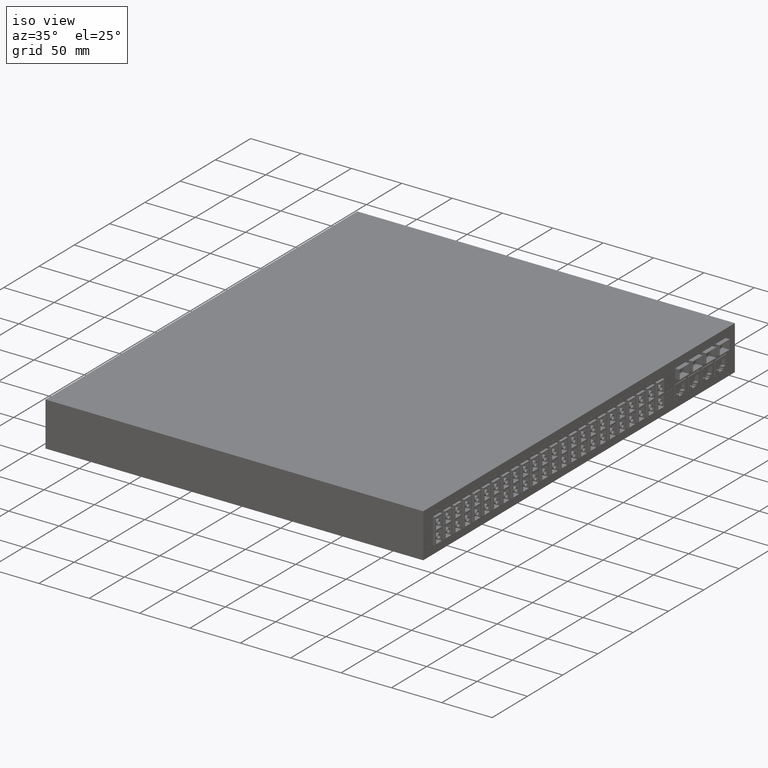
[diagram: clean part render]
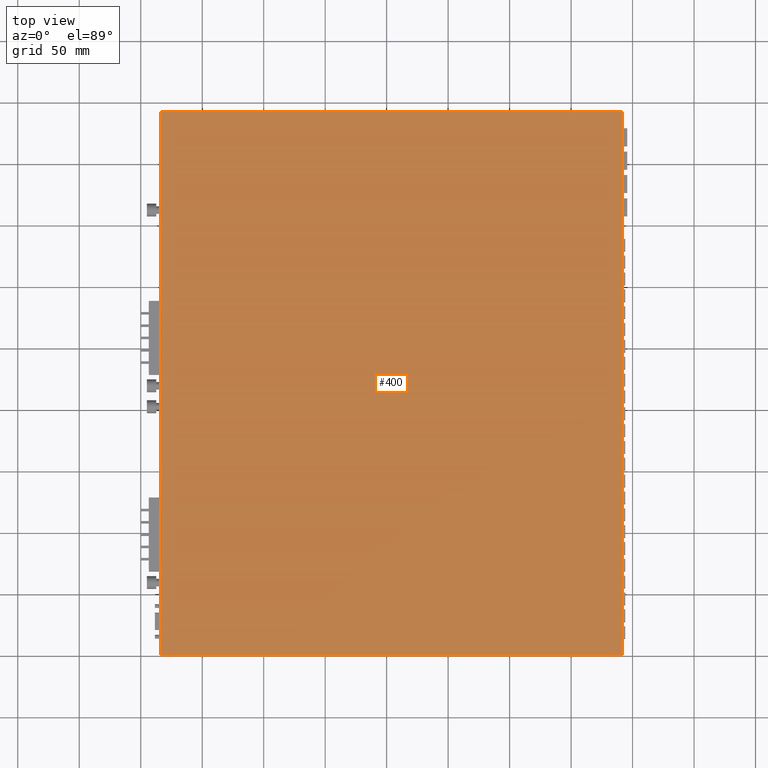
[diagram: tour spotlight — one face highlighted and labeled with its STEP entity id]
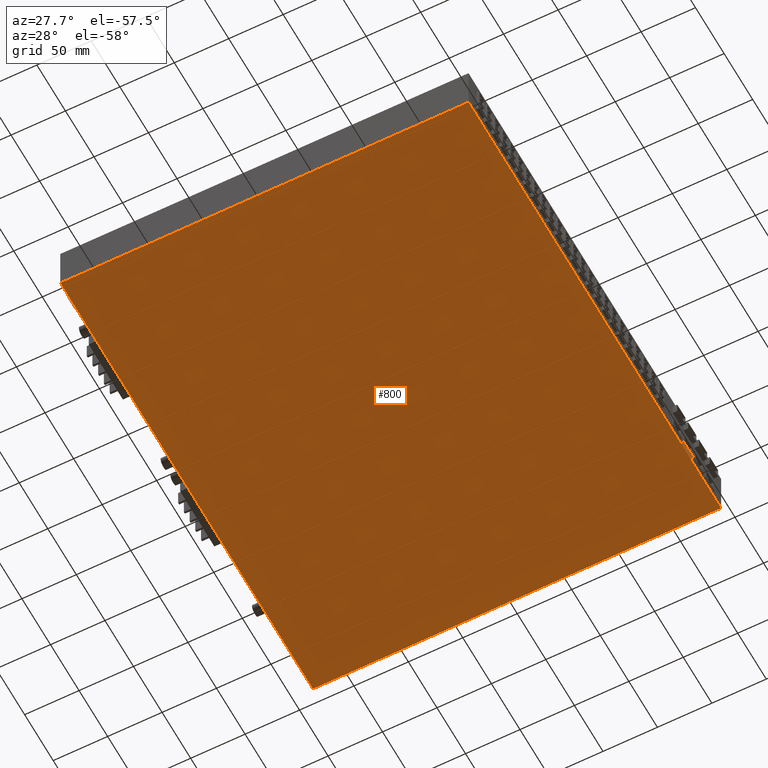
[diagram: tour spotlight — one face highlighted and labeled with its STEP entity id]
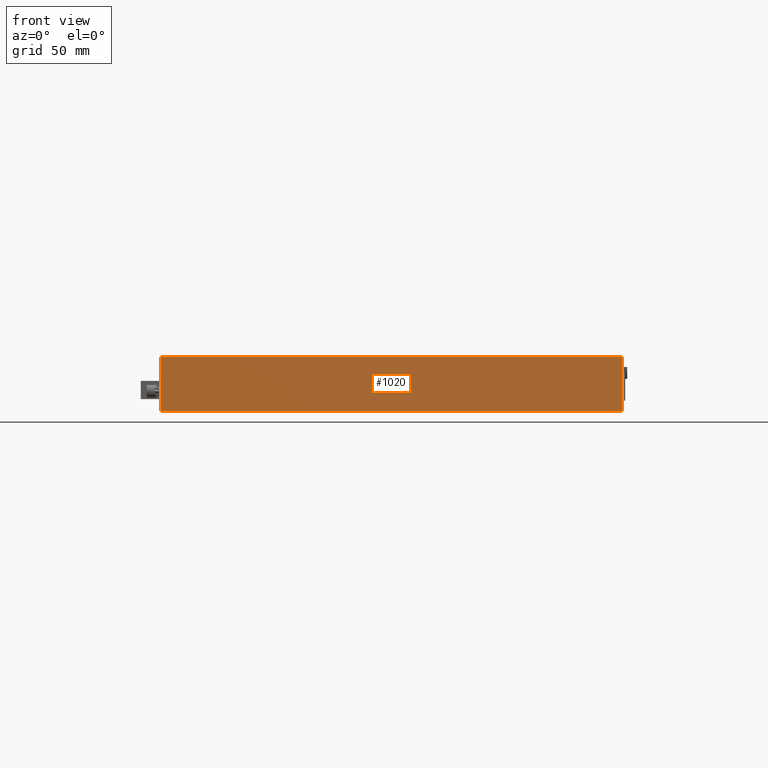
[diagram: tour spotlight — one face highlighted and labeled with its STEP entity id]
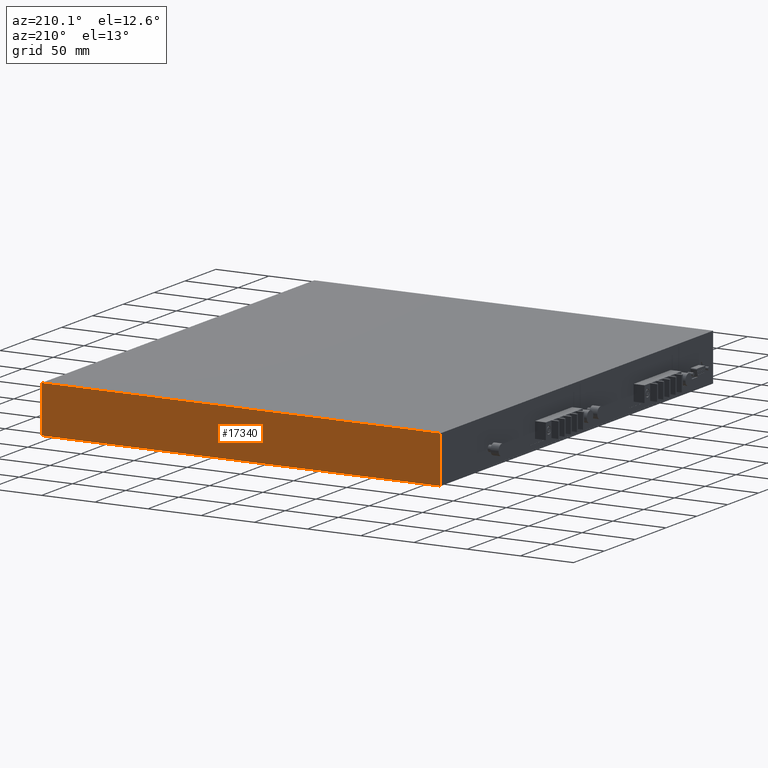
[diagram: tour spotlight — one face highlighted and labeled with its STEP entity id]
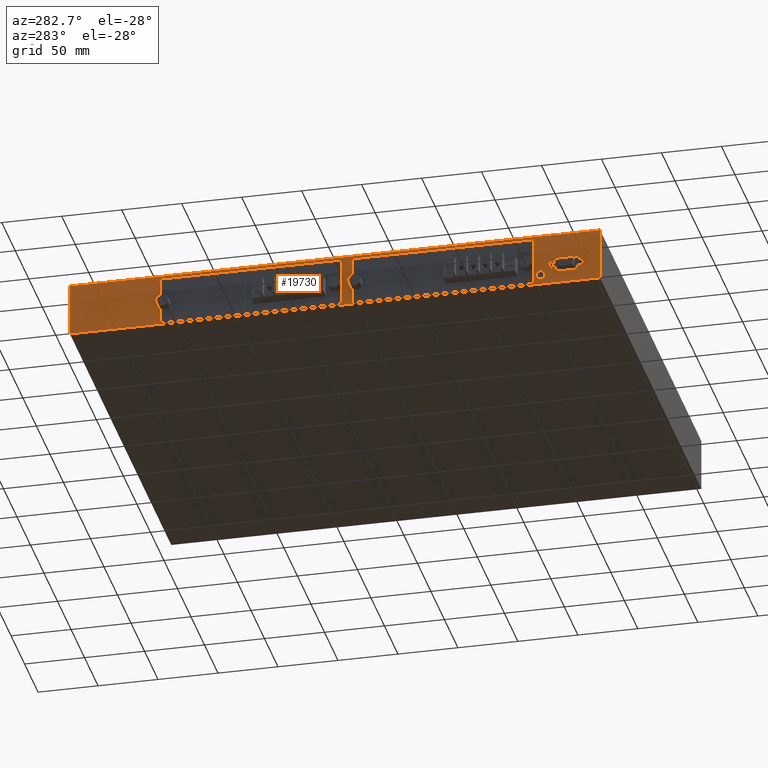
[diagram: tour spotlight — one face highlighted and labeled with its STEP entity id]
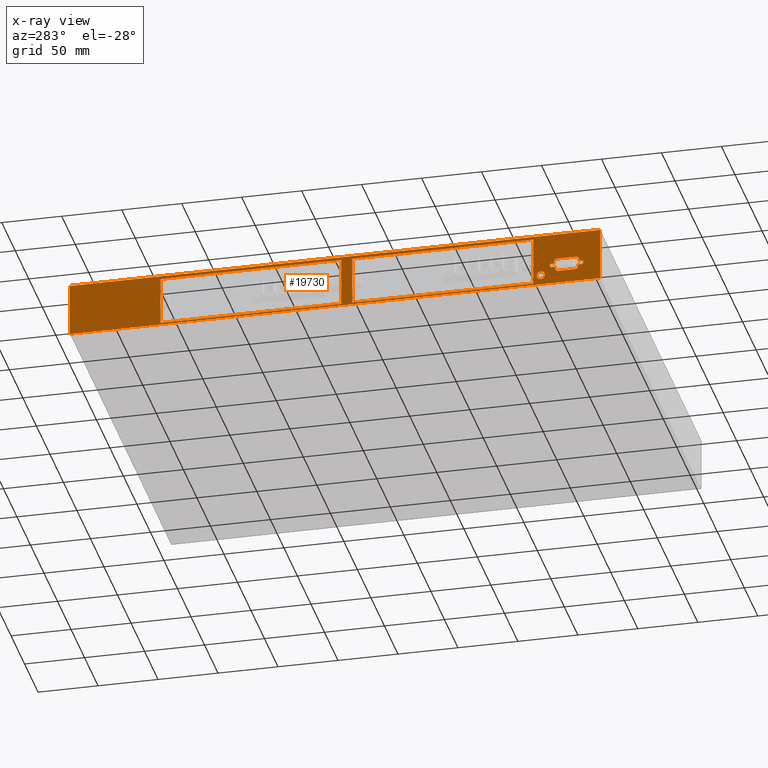
[diagram: x-ray of the same camera — body ghosted, this tour face saturated]
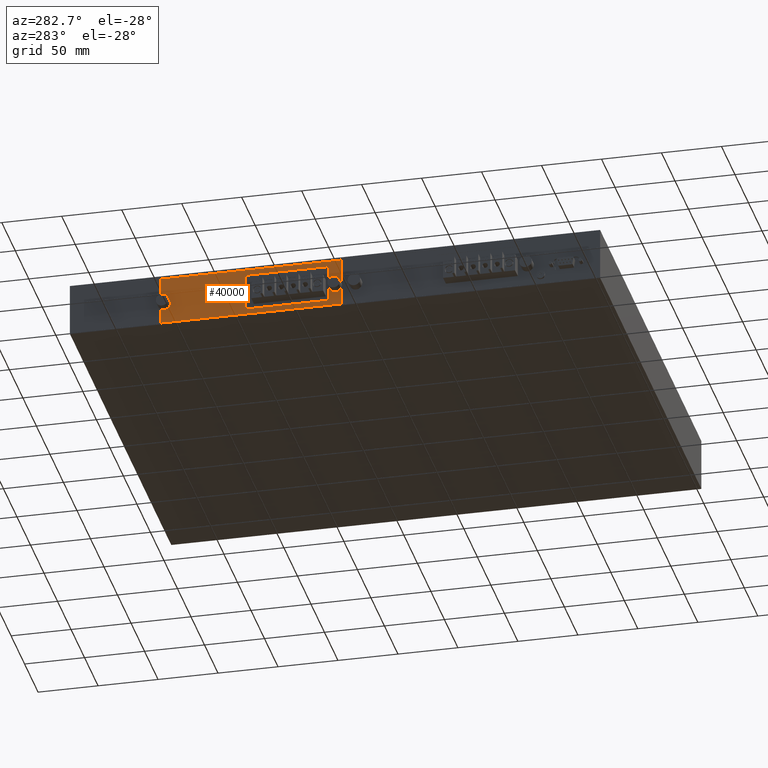
[diagram: tour spotlight — one face highlighted and labeled with its STEP entity id]
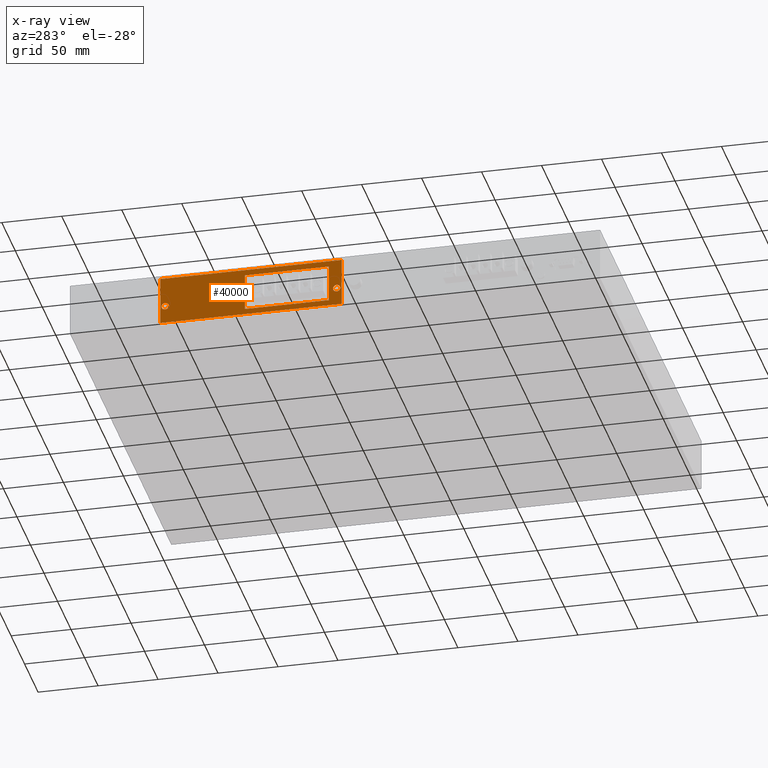
[diagram: x-ray of the same camera — body ghosted, this tour face saturated]
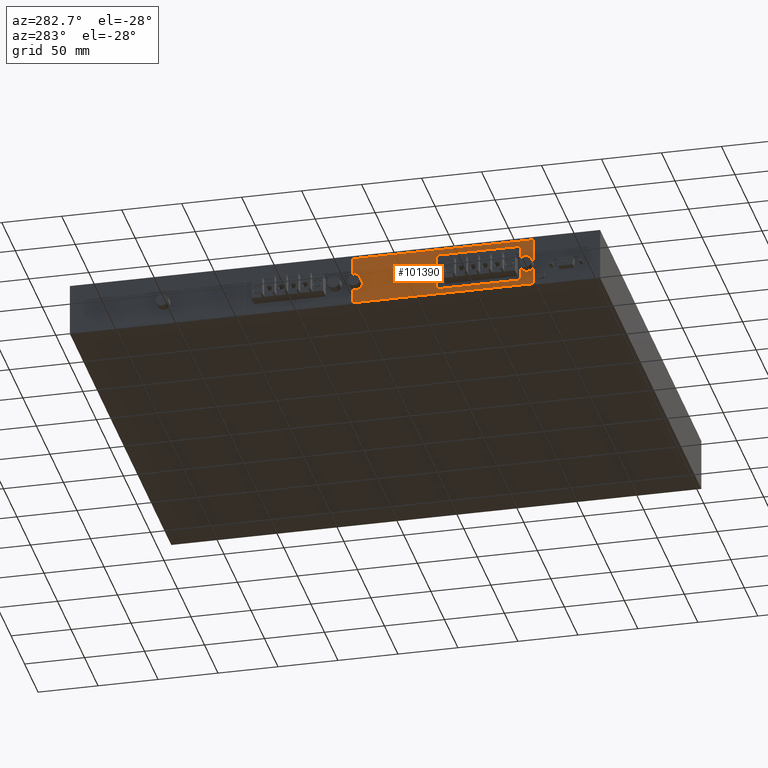
[diagram: tour spotlight — one face highlighted and labeled with its STEP entity id]
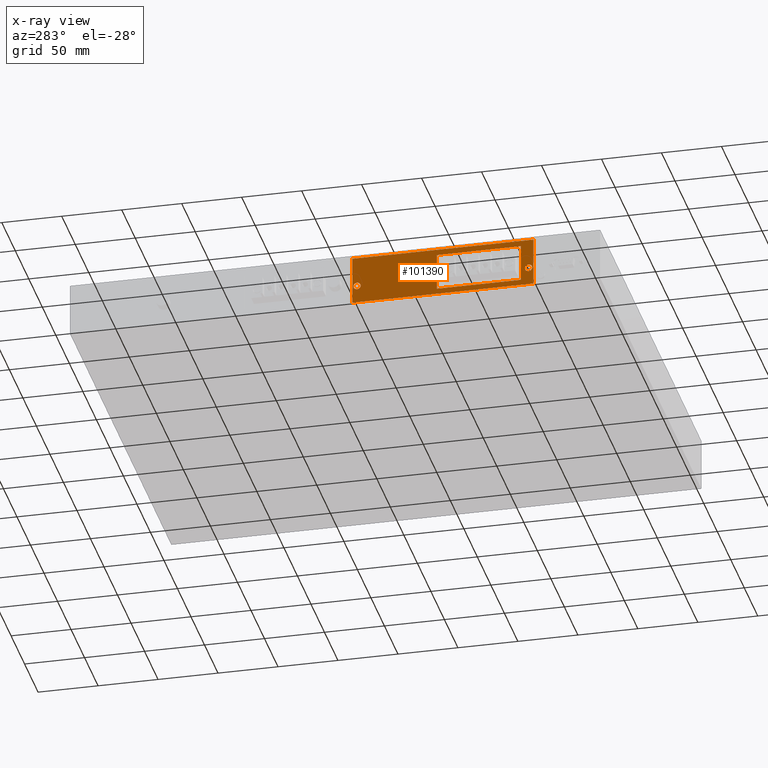
[diagram: x-ray of the same camera — body ghosted, this tour face saturated]
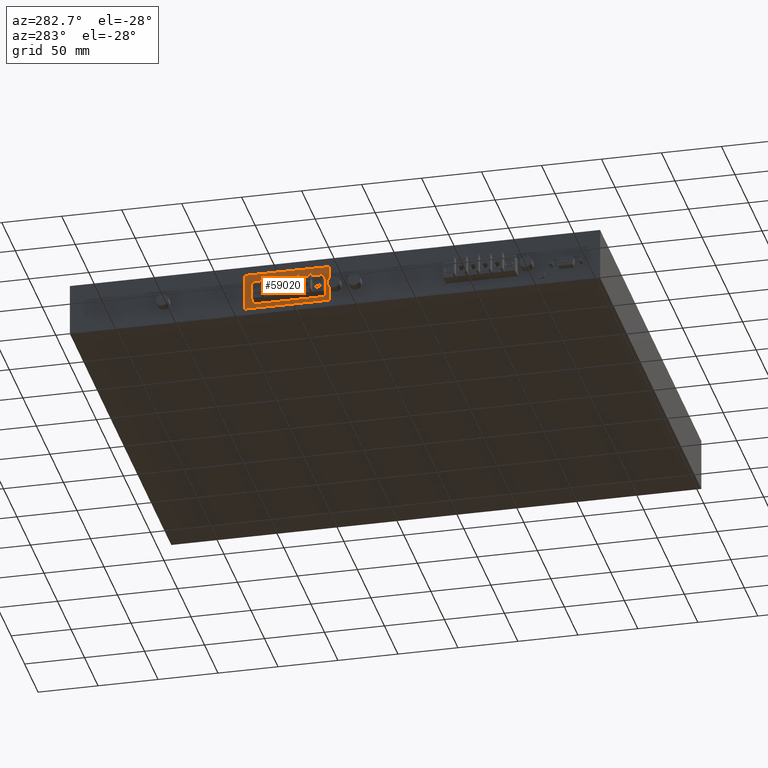
[diagram: tour spotlight — one face highlighted and labeled with its STEP entity id]
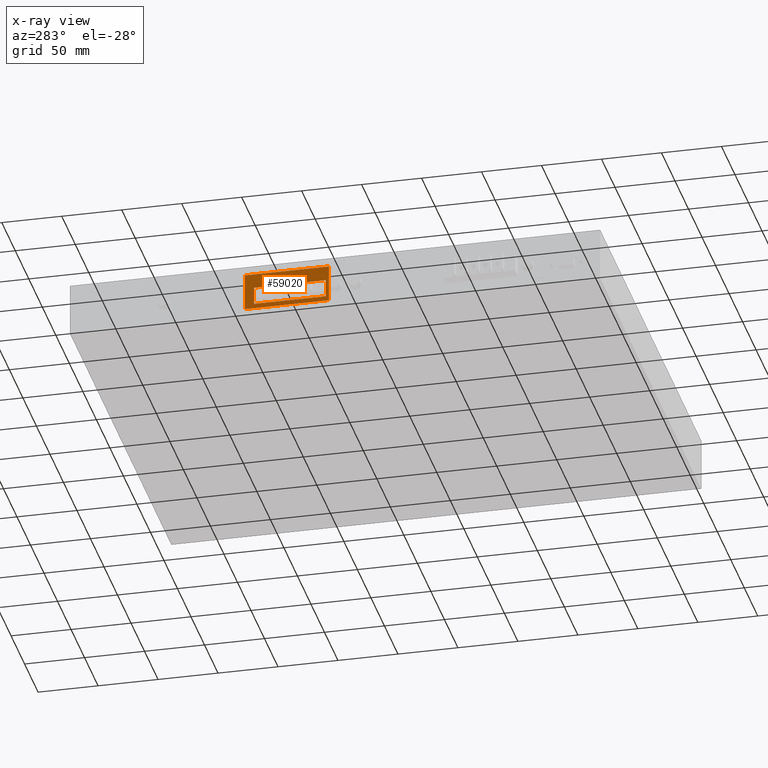
[diagram: x-ray of the same camera — body ghosted, this tour face saturated]
A machine part: a face-by-face anatomy tour. The part has 1141 B-rep faces; the first image is the clean iso view, then the 8 largest visible faces are spotlighted one at a time (largest first), each with its STEP entity span.

Face 1 — top view, entity #400. In plain terms, the highlighted planar face has unit normal (0, 0, 1).
Definition (entity closure, byte-faithful):
#10=CARTESIAN_POINT('',(-231.744053107435,4.40363222366137,
384.37506614998));
#20=DIRECTION('',(-0.,1.,0.));
#30=DIRECTION('',(1.,0.,0.));
#40=AXIS2_PLACEMENT_3D('',#10,#20,#30);
#50=PLANE('',#40);
#60=CARTESIAN_POINT('',(0.,4.40363222366137,-1.97246663447004E-11));
#70=DIRECTION('',(-1.,0.,0.));
#80=VECTOR('',#70,1.);
#90=LINE('',#60,#80);
#100=CARTESIAN_POINT('',(221.306013042565,4.40363222366137,
-1.97246663447004E-11));
#110=VERTEX_POINT('',#100);
#120=CARTESIAN_POINT('',(-220.693986957435,4.40363222366137,-1.9725E-11)
);
#130=VERTEX_POINT('',#120);
#140=EDGE_CURVE('',#110,#130,#90,.T.);
#150=ORIENTED_EDGE('',*,*,#140,.T.);
#160=CARTESIAN_POINT('',(221.306013042565,4.40363222366137,0.));
#170=DIRECTION('',(0.,0.,1.));
#180=VECTOR('',#170,1.);
#190=LINE('',#160,#180);
#200=CARTESIAN_POINT('',(221.306013042565,4.40363222366137,
374.99999999998));
#210=VERTEX_POINT('',#200);
#220=EDGE_CURVE('',#110,#210,#190,.T.);
#230=ORIENTED_EDGE('',*,*,#220,.F.);
#240=CARTESIAN_POINT('',(0.,4.40363222366137,374.99999999998));
#250=DIRECTION('',(-1.,0.,0.));
#260=VECTOR('',#250,1.);
#270=LINE('',#240,#260);
#280=CARTESIAN_POINT('',(-220.693986957435,4.40363222366137,
374.99999999998));
#290=VERTEX_POINT('',#280);
#300=EDGE_CURVE('',#210,#290,#270,.T.);
#310=ORIENTED_EDGE('',*,*,#300,.F.);
#320=CARTESIAN_POINT('',(-220.693986957435,4.40363222366137,0.));
#330=DIRECTION('',(0.,0.,-1.));
#340=VECTOR('',#330,1.);
#350=LINE('',#320,#340);
#360=EDGE_CURVE('',#290,#130,#350,.T.);
#370=ORIENTED_EDGE('',*,*,#360,.F.);
#380=EDGE_LOOP('',(#370,#310,#230,#150));
#390=FACE_OUTER_BOUND('',#380,.T.);
#400=ADVANCED_FACE('',(#390),#50,.T.);

Face 2 — auxiliary view, entity #800. In plain terms, the highlighted planar face has unit normal (-0, -0, -1).
Definition (entity closure, byte-faithful):
#410=CARTESIAN_POINT('',(232.356079192565,-39.5963677763395,
384.37506614998));
#420=DIRECTION('',(-0.,-1.,-0.));
#430=DIRECTION('',(-1.,0.,0.));
#440=AXIS2_PLACEMENT_3D('',#410,#420,#430);
#450=PLANE('',#440);
#460=CARTESIAN_POINT('',(-220.693986957435,-39.5963677763395,0.));
#470=DIRECTION('',(0.,0.,1.));
#480=VECTOR('',#470,1.);
#490=LINE('',#460,#480);
#500=CARTESIAN_POINT('',(-220.693986957435,-39.5963677763395,-1.9725E-11
));
#510=VERTEX_POINT('',#500);
#520=CARTESIAN_POINT('',(-220.693986957435,-39.5963677763395,
374.99999999998));
#530=VERTEX_POINT('',#520);
#540=EDGE_CURVE('',#510,#530,#490,.T.);
#550=ORIENTED_EDGE('',*,*,#540,.F.);
#560=CARTESIAN_POINT('',(0.,-39.5963677763395,374.99999999998));
#570=DIRECTION('',(1.,0.,0.));
#580=VECTOR('',#570,1.);
#590=LINE('',#560,#580);
#600=CARTESIAN_POINT('',(221.306013042565,-39.5963677763395,
374.99999999998));
#610=VERTEX_POINT('',#600);
#620=EDGE_CURVE('',#530,#610,#590,.T.);
#630=ORIENTED_EDGE('',*,*,#620,.F.);
#640=CARTESIAN_POINT('',(221.306013042565,-39.5963677763395,0.));
#650=DIRECTION('',(0.,0.,-1.));
#660=VECTOR('',#650,1.);
#670=LINE('',#640,#660);
#680=CARTESIAN_POINT('',(221.306013042565,-39.5963677763395,-1.9725E-11)
);
#690=VERTEX_POINT('',#680);
#700=EDGE_CURVE('',#610,#690,#670,.T.);
#710=ORIENTED_EDGE('',*,*,#700,.F.);
#720=CARTESIAN_POINT('',(0.,-39.5963677763395,-1.97246663447004E-11));
#730=DIRECTION('',(1.,0.,0.));
#740=VECTOR('',#730,1.);
#750=LINE('',#720,#740);
#760=EDGE_CURVE('',#510,#690,#750,.T.);
#770=ORIENTED_EDGE('',*,*,#760,.T.);
#780=EDGE_LOOP('',(#770,#710,#630,#550));
#790=FACE_OUTER_BOUND('',#780,.T.);
#800=ADVANCED_FACE('',(#790),#450,.T.);

Face 3 — front view, entity #1020. In plain terms, the highlighted planar face has unit normal (0, -1, 0).
Definition (entity closure, byte-faithful):
#120=CARTESIAN_POINT('',(-220.693986957435,4.40363222366137,-1.9725E-11)
);
#130=VERTEX_POINT('',#120);
#280=CARTESIAN_POINT('',(-220.693986957435,4.40363222366137,
374.99999999998));
#290=VERTEX_POINT('',#280);
#320=CARTESIAN_POINT('',(-220.693986957435,4.40363222366137,0.));
#330=DIRECTION('',(0.,0.,-1.));
#340=VECTOR('',#330,1.);
#350=LINE('',#320,#340);
#360=EDGE_CURVE('',#290,#130,#350,.T.);
#460=CARTESIAN_POINT('',(-220.693986957435,-39.5963677763395,0.));
#470=DIRECTION('',(0.,0.,1.));
#480=VECTOR('',#470,1.);
#490=LINE('',#460,#480);
#500=CARTESIAN_POINT('',(-220.693986957435,-39.5963677763395,-1.9725E-11
));
#510=VERTEX_POINT('',#500);
#520=CARTESIAN_POINT('',(-220.693986957435,-39.5963677763395,
374.99999999998));
#530=VERTEX_POINT('',#520);
#540=EDGE_CURVE('',#510,#530,#490,.T.);
#810=CARTESIAN_POINT('',(-220.693986957435,-40.6964339263395,
384.37506614998));
#820=DIRECTION('',(-1.,0.,0.));
#830=DIRECTION('',(0.,1.,0.));
#840=AXIS2_PLACEMENT_3D('',#810,#820,#830);
#850=PLANE('',#840);
#860=CARTESIAN_POINT('',(-220.693986957435,0.,374.99999999998));
#870=DIRECTION('',(0.,-1.,0.));
#880=VECTOR('',#870,1.);
#890=LINE('',#860,#880);
#900=EDGE_CURVE('',#290,#530,#890,.T.);
#910=ORIENTED_EDGE('',*,*,#900,.F.);
#920=ORIENTED_EDGE('',*,*,#540,.T.);
#930=CARTESIAN_POINT('',(-220.693986957435,0.,-1.97246663447004E-11));
#940=DIRECTION('',(0.,-1.,0.));
#950=VECTOR('',#940,1.);
#960=LINE('',#930,#950);
#970=EDGE_CURVE('',#130,#510,#960,.T.);
#980=ORIENTED_EDGE('',*,*,#970,.T.);
#990=ORIENTED_EDGE('',*,*,#360,.T.);
#1000=EDGE_LOOP('',(#990,#980,#920,#910));
#1010=FACE_OUTER_BOUND('',#1000,.T.);
#1020=ADVANCED_FACE('',(#1010),#850,.T.);

Face 4 — auxiliary view, entity #17340. In plain terms, the highlighted planar face has unit normal (0, 1, 0).
Definition (entity closure, byte-faithful):
#100=CARTESIAN_POINT('',(221.306013042565,4.40363222366137,
-1.97246663447004E-11));
#110=VERTEX_POINT('',#100);
#160=CARTESIAN_POINT('',(221.306013042565,4.40363222366137,0.));
#170=DIRECTION('',(0.,0.,1.));
#180=VECTOR('',#170,1.);
#190=LINE('',#160,#180);
#200=CARTESIAN_POINT('',(221.306013042565,4.40363222366137,
374.99999999998));
#210=VERTEX_POINT('',#200);
#220=EDGE_CURVE('',#110,#210,#190,.T.);
#600=CARTESIAN_POINT('',(221.306013042565,-39.5963677763395,
374.99999999998));
#610=VERTEX_POINT('',#600);
#640=CARTESIAN_POINT('',(221.306013042565,-39.5963677763395,0.));
#650=DIRECTION('',(0.,0.,-1.));
#660=VECTOR('',#650,1.);
#670=LINE('',#640,#660);
#680=CARTESIAN_POINT('',(221.306013042565,-39.5963677763395,-1.9725E-11)
);
#690=VERTEX_POINT('',#680);
#700=EDGE_CURVE('',#610,#690,#670,.T.);
#15560=CARTESIAN_POINT('',(221.306013042565,0.,374.99999999998));
#15570=DIRECTION('',(0.,1.,0.));
#15580=VECTOR('',#15570,1.);
#15590=LINE('',#15560,#15580);
#15600=EDGE_CURVE('',#610,#210,#15590,.T.);
#17180=CARTESIAN_POINT('',(221.306013042565,5.50369837366139,
384.37506614998));
#17190=DIRECTION('',(1.,0.,0.));
#17200=DIRECTION('',(0.,-1.,0.));
#17210=AXIS2_PLACEMENT_3D('',#17180,#17190,#17200);
#17220=PLANE('',#17210);
#17230=CARTESIAN_POINT('',(221.306013042565,0.,-1.97246663447004E-11));
#17240=DIRECTION('',(0.,1.,0.));
#17250=VECTOR('',#17240,1.);
#17260=LINE('',#17230,#17250);
#17270=EDGE_CURVE('',#690,#110,#17260,.T.);
#17280=ORIENTED_EDGE('',*,*,#17270,.T.);
#17290=ORIENTED_EDGE('',*,*,#700,.T.);
#17300=ORIENTED_EDGE('',*,*,#15600,.F.);
#17310=ORIENTED_EDGE('',*,*,#220,.T.);
#17320=EDGE_LOOP('',(#17310,#17300,#17290,#17280));
#17330=FACE_OUTER_BOUND('',#17320,.T.);
#17340=ADVANCED_FACE('',(#17330),#17220,.T.);

Face 5 — auxiliary view, entity #19730. An x-ray twin of the same camera follows (body ghosted, this face saturated) — the face is partly hidden behind the body. In plain terms, the highlighted planar face has unit normal (-1, 0, 0).
Definition (entity closure, byte-faithful):
#60=CARTESIAN_POINT('',(0.,4.40363222366137,-1.97246663447004E-11));
#70=DIRECTION('',(-1.,0.,0.));
#80=VECTOR('',#70,1.);
#90=LINE('',#60,#80);
#100=CARTESIAN_POINT('',(221.306013042565,4.40363222366137,
-1.97246663447004E-11));
#110=VERTEX_POINT('',#100);
#120=CARTESIAN_POINT('',(-220.693986957435,4.40363222366137,-1.9725E-11)
);
#130=VERTEX_POINT('',#120);
#140=EDGE_CURVE('',#110,#130,#90,.T.);
#500=CARTESIAN_POINT('',(-220.693986957435,-39.5963677763395,-1.9725E-11
));
#510=VERTEX_POINT('',#500);
#680=CARTESIAN_POINT('',(221.306013042565,-39.5963677763395,-1.9725E-11)
);
#690=VERTEX_POINT('',#680);
#720=CARTESIAN_POINT('',(0.,-39.5963677763395,-1.97246663447004E-11));
#730=DIRECTION('',(1.,0.,0.));
#740=VECTOR('',#730,1.);
#750=LINE('',#720,#740);
#760=EDGE_CURVE('',#510,#690,#750,.T.);
#930=CARTESIAN_POINT('',(-220.693986957435,0.,-1.97246663447004E-11));
#940=DIRECTION('',(0.,-1.,0.));
#950=VECTOR('',#940,1.);
#960=LINE('',#930,#950);
#970=EDGE_CURVE('',#130,#510,#960,.T.);
#17230=CARTESIAN_POINT('',(221.306013042565,0.,-1.97246663447004E-11));
#17240=DIRECTION('',(0.,1.,0.));
#17250=VECTOR('',#17240,1.);
#17260=LINE('',#17230,#17250);
#17270=EDGE_CURVE('',#690,#110,#17260,.T.);
#17350=CARTESIAN_POINT('',(232.356079192565,-40.6964339263395,
-1.97246663447004E-11));
#17360=DIRECTION('',(0.,0.,-1.));
#17370=DIRECTION('',(-1.,0.,0.));
#17380=AXIS2_PLACEMENT_3D('',#17350,#17360,#17370);
#17390=PLANE('',#17380);
#17400=CARTESIAN_POINT('',(0.,-38.4963677763395,-1.97246663447004E-11));
#17410=DIRECTION('',(-1.,0.,0.));
#17420=VECTOR('',#17410,1.);
#17430=LINE('',#17400,#17420);
#17440=CARTESIAN_POINT('',(145.906013042565,-38.4963677763395,
-1.9725E-11));
#17450=VERTEX_POINT('',#17440);
#17460=CARTESIAN_POINT('',(-5.09398695743528,-38.4963677763395,
-1.9725E-11));
#17470=VERTEX_POINT('',#17460);
#17480=EDGE_CURVE('',#17450,#17470,#17430,.T.);
#17490=ORIENTED_EDGE('',*,*,#17480,.F.);
#17500=CARTESIAN_POINT('',(-5.09398695743528,0.,-1.97246663447004E-11));
#17510=DIRECTION('',(0.,1.,0.));
#17520=VECTOR('',#17510,1.);
#17530=LINE('',#17500,#17520);
#17540=CARTESIAN_POINT('',(-5.09398695743528,2.0036322236605,-1.9725E-11
));
#17550=VERTEX_POINT('',#17540);
#17560=EDGE_CURVE('',#17470,#17550,#17530,.T.);
#17570=ORIENTED_EDGE('',*,*,#17560,.F.);
#17580=CARTESIAN_POINT('',(0.,2.0036322236605,-1.97246663447004E-11));
#17590=DIRECTION('',(1.,0.,0.));
#17600=VECTOR('',#17590,1.);
#17610=LINE('',#17580,#17600);
#17620=CARTESIAN_POINT('',(145.906013042565,2.0036322236605,-1.9725E-11)
);
#17630=VERTEX_POINT('',#17620);
#17640=EDGE_CURVE('',#17550,#17630,#17610,.T.);
#17650=ORIENTED_EDGE('',*,*,#17640,.F.);
#17660=CARTESIAN_POINT('',(145.906013042565,0.,-1.97246663447004E-11));
#17670=DIRECTION('',(0.,-1.,0.));
#17680=VECTOR('',#17670,1.);
#17690=LINE('',#17660,#17680);
#17700=EDGE_CURVE('',#17630,#17450,#17690,.T.);
#17710=ORIENTED_EDGE('',*,*,#17700,.F.);
#17720=EDGE_LOOP('',(#17710,#17650,#17570,#17490));
#17730=FACE_BOUND('',#17720,.T.);
#17740=CARTESIAN_POINT('',(0.,-29.2963677763395,-1.97246663447004E-11));
#17750=DIRECTION('',(-1.,0.,0.));
#17760=VECTOR('',#17750,1.);
#17770=LINE('',#17740,#17760);
#17780=CARTESIAN_POINT('',(-185.801863615455,-29.2963677763394,
-1.9725E-11));
#17790=VERTEX_POINT('',#17780);
#17800=CARTESIAN_POINT('',(-199.586110299416,-29.2963677763395,
-1.9725E-11));
#17810=VERTEX_POINT('',#17800);
#17820=EDGE_CURVE('',#17790,#17810,#17770,.T.);
#17830=ORIENTED_EDGE('',*,*,#17820,.F.);
#17840=CARTESIAN_POINT('',(-199.586110299416,-26.7963677763395,
-1.97246663447004E-11));
#17850=DIRECTION('',(0.,0.,1.));
#17860=DIRECTION('',(1.,0.,0.));
#17870=AXIS2_PLACEMENT_3D('',#17840,#17850,#17860);
#17880=CIRCLE('',#17870,2.50000000000003);
#17890=CARTESIAN_POINT('',(-202.048129681946,-27.2304882205068,
-1.9725E-11));
#17900=VERTEX_POINT('',#17890);
#17910=EDGE_CURVE('',#17900,#17810,#17880,.T.);
#17920=ORIENTED_EDGE('',*,*,#17910,.T.);
#17930=CARTESIAN_POINT('',(-206.849599453086,0.,-1.97246663447004E-11));
#17940=DIRECTION('',(-0.173648177666933,0.984807753012208,0.));
#17950=VECTOR('',#17940,1.);
#17960=LINE('',#17930,#17950);
#17970=CARTESIAN_POINT('',(-202.406799998264,-25.1963677763395,
-1.9725E-11));
#17980=VERTEX_POINT('',#17970);
#17990=EDGE_CURVE('',#17900,#17980,#17960,.T.);
#18000=ORIENTED_EDGE('',*,*,#17990,.F.);
#18010=CARTESIAN_POINT('',(0.,-25.1963677763395,-1.97246663447004E-11));
#18020=DIRECTION('',(-1.,0.,0.));
#18030=VECTOR('',#18020,1.);
#18040=LINE('',#18010,#18030);
#18050=CARTESIAN_POINT('',(-205.193986957435,-25.1963677763395,
-1.9725E-11));
#18060=VERTEX_POINT('',#18050);
#18070=EDGE_CURVE('',#17980,#18060,#18040,.T.);
#18080=ORIENTED_EDGE('',*,*,#18070,.F.);
#18090=CARTESIAN_POINT('',(-205.193986957435,-23.5963677763395,
-1.97246663447004E-11));
#18100=DIRECTION('',(0.,0.,1.));
#18110=DIRECTION('',(1.,0.,0.));
#18120=AXIS2_PLACEMENT_3D('',#18090,#18100,#18110);
#18130=CIRCLE('',#18120,1.60000000000001);
#18140=CARTESIAN_POINT('',(-206.793986957435,-23.5963677763395,
-1.97246663447004E-11));
#18150=VERTEX_POINT('',#18140);
#18160=EDGE_CURVE('',#18150,#18060,#18130,.T.);
#18170=ORIENTED_EDGE('',*,*,#18160,.T.);
#18180=CARTESIAN_POINT('',(-205.193986957435,-21.9963677763395,
-1.9725E-11));
#18190=VERTEX_POINT('',#18180);
#18200=EDGE_CURVE('',#18190,#18150,#18130,.T.);
#18210=ORIENTED_EDGE('',*,*,#18200,.T.);
#18220=CARTESIAN_POINT('',(0.,-21.9963677763395,-1.97246663447004E-11));
#18230=DIRECTION('',(1.,0.,0.));
#18240=VECTOR('',#18230,1.);
#18250=LINE('',#18220,#18240);
#18260=CARTESIAN_POINT('',(-202.971046336531,-21.9963677763395,
-1.9725E-11));
#18270=VERTEX_POINT('',#18260);
#18280=EDGE_CURVE('',#18190,#18270,#18250,.T.);
#18290=ORIENTED_EDGE('',*,*,#18280,.F.);
#18300=CARTESIAN_POINT('',(-206.849599453085,0.,-1.97246663447004E-11));
#18310=DIRECTION('',(-0.173648177666922,0.98480775301221,0.));
#18320=VECTOR('',#18310,1.);
#18330=LINE('',#18300,#18320);
#18340=CARTESIAN_POINT('',(-203.17662235848,-20.8304882205068,
-1.9725E-11));
#18350=VERTEX_POINT('',#18340);
#18360=EDGE_CURVE('',#18270,#18350,#18330,.T.);
#18370=ORIENTED_EDGE('',*,*,#18360,.F.);
#18380=CARTESIAN_POINT('',(-200.71460297595,-20.3963677763395,
-1.97246663447004E-11));
#18390=DIRECTION('',(0.,0.,1.));
#18400=DIRECTION('',(1.,0.,0.));
#18410=AXIS2_PLACEMENT_3D('',#18380,#18390,#18400);
#18420=CIRCLE('',#18410,2.50000000000001);
#18430=CARTESIAN_POINT('',(-200.71460297595,-17.8963677763395,
-1.9725E-11));
#18440=VERTEX_POINT('',#18430);
#18450=EDGE_CURVE('',#18440,#18350,#18420,.T.);
#18460=ORIENTED_EDGE('',*,*,#18450,.T.);
#18470=CARTESIAN_POINT('',(0.,-17.8963677763394,-1.97246663447004E-11));
#18480=DIRECTION('',(1.,0.,0.));
#18490=VECTOR('',#18480,1.);
#18500=LINE('',#18470,#18490);
#18510=CARTESIAN_POINT('',(-184.673370938921,-17.8963677763394,
-1.9725E-11));
#18520=VERTEX_POINT('',#18510);
#18530=EDGE_CURVE('',#18440,#18520,#18500,.T.);
#18540=ORIENTED_EDGE('',*,*,#18530,.F.);
#18550=CARTESIAN_POINT('',(-184.673370938921,-20.3963677763394,
-1.97246663447004E-11));
#18560=DIRECTION('',(0.,0.,1.));
#18570=DIRECTION('',(1.,0.,0.));
#18580=AXIS2_PLACEMENT_3D('',#18550,#18560,#18570);
#18590=CIRCLE('',#18580,2.49999999999997);
#18600=CARTESIAN_POINT('',(-182.21135155639,-20.8304882205068,
-1.9725E-11));
#18610=VERTEX_POINT('',#18600);
#18620=EDGE_CURVE('',#18610,#18520,#18590,.T.);
#18630=ORIENTED_EDGE('',*,*,#18620,.T.);
#18640=CARTESIAN_POINT('',(-178.538374461785,0.,-1.97246663447004E-11));
#18650=DIRECTION('',(-0.173648177666922,-0.98480775301221,0.));
#18660=VECTOR('',#18650,1.);
#18670=LINE('',#18640,#18660);
#18680=CARTESIAN_POINT('',(-182.41692757834,-21.9963677763394,
-1.9725E-11));
#18690=VERTEX_POINT('',#18680);
#18700=EDGE_CURVE('',#18610,#18690,#18670,.T.);
#18710=ORIENTED_EDGE('',*,*,#18700,.F.);
#18720=CARTESIAN_POINT('',(0.,-21.9963677763394,-1.97246663447004E-11));
#18730=DIRECTION('',(1.,0.,0.));
#18740=VECTOR('',#18730,1.);
#18750=LINE('',#18720,#18740);
#18760=CARTESIAN_POINT('',(-180.193986957435,-21.9963677763394,
-1.9725E-11));
#18770=VERTEX_POINT('',#18760);
#18780=EDGE_CURVE('',#18690,#18770,#18750,.T.);
#18790=ORIENTED_EDGE('',*,*,#18780,.F.);
#18800=CARTESIAN_POINT('',(-180.193986957435,-23.5963677763395,
-1.97246663447004E-11));
#18810=DIRECTION('',(0.,0.,1.));
#18820=DIRECTION('',(1.,0.,0.));
#18830=AXIS2_PLACEMENT_3D('',#18800,#18810,#18820);
#18840=CIRCLE('',#18830,1.59999999999995);
#18850=CARTESIAN_POINT('',(-178.593986957435,-23.5963677763395,
-1.97246663447004E-11));
#18860=VERTEX_POINT('',#18850);
#18870=EDGE_CURVE('',#18860,#18770,#18840,.T.);
#18880=ORIENTED_EDGE('',*,*,#18870,.T.);
#18890=CARTESIAN_POINT('',(-180.193986957435,-25.1963677763394,
-1.9725E-11));
#18900=VERTEX_POINT('',#18890);
#18910=EDGE_CURVE('',#18900,#18860,#18840,.T.);
#18920=ORIENTED_EDGE('',*,*,#18910,.T.);
#18930=CARTESIAN_POINT('',(0.,-25.1963677763394,-1.97246663447004E-11));
#18940=DIRECTION('',(-1.,0.,0.));
#18950=VECTOR('',#18940,1.);
#18960=LINE('',#18930,#18950);
#18970=CARTESIAN_POINT('',(-182.981173916607,-25.1963677763394,
-1.9725E-11));
#18980=VERTEX_POINT('',#18970);
#18990=EDGE_CURVE('',#18900,#18980,#18960,.T.);
#19000=ORIENTED_EDGE('',*,*,#18990,.F.);
#19010=CARTESIAN_POINT('',(-178.538374461786,0.,-1.97246663447004E-11));
#19020=DIRECTION('',(-0.173648177666909,-0.984807753012212,0.));
#19030=VECTOR('',#19020,1.);
#19040=LINE('',#19010,#19030);
#19050=CARTESIAN_POINT('',(-183.339844232924,-27.2304882205067,
-1.9725E-11));
#19060=VERTEX_POINT('',#19050);
#19070=EDGE_CURVE('',#18980,#19060,#19040,.T.);
#19080=ORIENTED_EDGE('',*,*,#19070,.F.);
#19090=CARTESIAN_POINT('',(-185.801863615455,-26.7963677763398,
-1.97246663447004E-11));
#19100=DIRECTION('',(0.,0.,1.));
#19110=DIRECTION('',(1.,0.,0.));
#19120=AXIS2_PLACEMENT_3D('',#19090,#19100,#19110);
#19130=CIRCLE('',#19120,2.49999999999958);
#19140=EDGE_CURVE('',#17790,#19060,#19130,.T.);
#19150=ORIENTED_EDGE('',*,*,#19140,.T.);
#19160=EDGE_LOOP('',(#19150,#19080,#19000,#18920,#18880,#18790,#18710,
#18630,#18540,#18460,#18370,#18290,#18210,#18170,#18080,#18000,#17920,
#17830));
#19170=FACE_BOUND('',#19160,.T.);
#19180=CARTESIAN_POINT('',(-171.293986957435,-31.5963677763395,
-1.97246663447004E-11));
#19190=DIRECTION('',(0.,0.,-1.));
#19200=DIRECTION('',(-1.,0.,0.));
#19210=AXIS2_PLACEMENT_3D('',#19180,#19190,#19200);
#19220=CIRCLE('',#19210,3.50000000000002);
#19230=CARTESIAN_POINT('',(-167.793986957435,-31.5963677763395,
-1.97249994116078E-11));
#19240=VERTEX_POINT('',#19230);
#19250=CARTESIAN_POINT('',(-174.793986957435,-31.5963677763395,
-1.97246663447004E-11));
#19260=VERTEX_POINT('',#19250);
#19270=EDGE_CURVE('',#19240,#19260,#19220,.T.);
#19280=ORIENTED_EDGE('',*,*,#19270,.F.);
#19290=EDGE_CURVE('',#19260,#19240,#19220,.T.);
#19300=ORIENTED_EDGE('',*,*,#19290,.F.);
#19310=EDGE_LOOP('',(#19300,#19280));
#19320=FACE_BOUND('',#19310,.T.);
#19330=CARTESIAN_POINT('',(0.,2.0036322236605,-1.97246663447004E-11));
#19340=DIRECTION('',(1.,0.,0.));
#19350=VECTOR('',#19340,1.);
#19360=LINE('',#19330,#19350);
#19370=CARTESIAN_POINT('',(-165.093986957435,2.0036322236605,-1.9725E-11
));
#19380=VERTEX_POINT('',#19370);
#19390=CARTESIAN_POINT('',(-14.0939869574354,2.0036322236605,-1.9725E-11
));
#19400=VERTEX_POINT('',#19390);
#19410=EDGE_CURVE('',#19380,#19400,#19360,.T.);
#19420=ORIENTED_EDGE('',*,*,#19410,.F.);
#19430=CARTESIAN_POINT('',(-14.0939869574354,0.,-1.97246663447004E-11));
#19440=DIRECTION('',(0.,-1.,0.));
#19450=VECTOR('',#19440,1.);
#19460=LINE('',#19430,#19450);
#19470=CARTESIAN_POINT('',(-14.0939869574354,-38.4963677763395,
-1.9725E-11));
#19480=VERTEX_POINT('',#19470);
#19490=EDGE_CURVE('',#19400,#19480,#19460,.T.);
#19500=ORIENTED_EDGE('',*,*,#19490,.F.);
#19510=CARTESIAN_POINT('',(0.,-38.4963677763395,-1.97246663447004E-11));
#19520=DIRECTION('',(-1.,0.,0.));
#19530=VECTOR('',#19520,1.);
#19540=LINE('',#19510,#19530);
#19550=CARTESIAN_POINT('',(-165.093986957435,-38.4963677763395,
-1.9725E-11));
#19560=VERTEX_POINT('',#19550);
#19570=EDGE_CURVE('',#19480,#19560,#19540,.T.);
#19580=ORIENTED_EDGE('',*,*,#19570,.F.);
#19590=CARTESIAN_POINT('',(-165.093986957435,0.,-1.97246663447004E-11));
#19600=DIRECTION('',(0.,1.,0.));
#19610=VECTOR('',#19600,1.);
#19620=LINE('',#19590,#19610);
#19630=EDGE_CURVE('',#19560,#19380,#19620,.T.);
#19640=ORIENTED_EDGE('',*,*,#19630,.F.);
#19650=EDGE_LOOP('',(#19640,#19580,#19500,#19420));
#19660=FACE_BOUND('',#19650,.T.);
#19670=ORIENTED_EDGE('',*,*,#140,.F.);
#19680=ORIENTED_EDGE('',*,*,#970,.F.);
#19690=ORIENTED_EDGE('',*,*,#760,.F.);
#19700=ORIENTED_EDGE('',*,*,#17270,.F.);
#19710=EDGE_LOOP('',(#19700,#19690,#19680,#19670));
#19720=FACE_OUTER_BOUND('',#19710,.T.);
#19730=ADVANCED_FACE('',(#17730,#19170,#19320,#19660,#19720),#17390,.T.)
;

Face 6 — auxiliary view, entity #40000. An x-ray twin of the same camera follows (body ghosted, this face saturated) — the face is partly hidden behind the body. In plain terms, the highlighted planar face has unit normal (-1, 0, 0).
Definition (entity closure, byte-faithful):
#33140=CARTESIAN_POINT('',(5.40601304256532,-2.79636777633966,
0.09999999998027));
#33150=VERTEX_POINT('',#33140);
#33180=CARTESIAN_POINT('',(5.40601304256532,0.,0.09999999998027));
#33190=DIRECTION('',(0.,1.,0.));
#33200=VECTOR('',#33190,1.);
#33210=LINE('',#33180,#33200);
#33220=CARTESIAN_POINT('',(5.40601304256532,-33.7963677763396,
0.09999999998027));
#33230=VERTEX_POINT('',#33220);
#33240=EDGE_CURVE('',#33230,#33150,#33210,.T.);
#39060=CARTESIAN_POINT('',(149.681079192565,-39.5089339263395,
0.09999999998027));
#39070=DIRECTION('',(0.,0.,-1.));
#39080=DIRECTION('',(-1.,0.,0.));
#39090=AXIS2_PLACEMENT_3D('',#39060,#39070,#39080);
#39100=PLANE('',#39090);
#39110=CARTESIAN_POINT('',(145.906013042565,0.,0.09999999998027));
#39120=DIRECTION('',(0.,1.,0.));
#39130=VECTOR('',#39120,1.);
#39140=LINE('',#39110,#39130);
#39150=CARTESIAN_POINT('',(145.906013042565,-38.4963677763395,
0.09999999998027));
#39160=VERTEX_POINT('',#39150);
#39170=CARTESIAN_POINT('',(145.906013042565,2.0036322236605,
0.09999999998027));
#39180=VERTEX_POINT('',#39170);
#39190=EDGE_CURVE('',#39160,#39180,#39140,.T.);
#39200=ORIENTED_EDGE('',*,*,#39190,.F.);
#39210=CARTESIAN_POINT('',(0.,2.0036322236605,0.09999999998027));
#39220=DIRECTION('',(-1.,0.,0.));
#39230=VECTOR('',#39220,1.);
#39240=LINE('',#39210,#39230);
#39250=CARTESIAN_POINT('',(-5.09398695743528,2.0036322236605,
0.09999999998027));
#39260=VERTEX_POINT('',#39250);
#39270=EDGE_CURVE('',#39180,#39260,#39240,.T.);
#39280=ORIENTED_EDGE('',*,*,#39270,.F.);
#39290=CARTESIAN_POINT('',(-5.09398695743528,0.,0.09999999998027));
#39300=DIRECTION('',(0.,-1.,0.));
#39310=VECTOR('',#39300,1.);
#39320=LINE('',#39290,#39310);
#39330=CARTESIAN_POINT('',(-5.09398695743535,-38.4963677763395,
0.09999999998027));
#39340=VERTEX_POINT('',#39330);
#39350=EDGE_CURVE('',#39260,#39340,#39320,.T.);
#39360=ORIENTED_EDGE('',*,*,#39350,.F.);
#39370=CARTESIAN_POINT('',(0.,-38.4963677763395,0.09999999998027));
#39380=DIRECTION('',(1.,0.,0.));
#39390=VECTOR('',#39380,1.);
#39400=LINE('',#39370,#39390);
#39410=EDGE_CURVE('',#39340,#39160,#39400,.T.);
#39420=ORIENTED_EDGE('',*,*,#39410,.F.);
#39430=EDGE_LOOP('',(#39420,#39360,#39280,#39200));
#39440=FACE_OUTER_BOUND('',#39430,.T.);
#39450=CARTESIAN_POINT('',(141.906013042565,-23.4963677763394,
0.0999999999802696));
#39460=DIRECTION('',(0.,0.,1.));
#39470=DIRECTION('',(1.,0.,0.));
#39480=AXIS2_PLACEMENT_3D('',#39450,#39460,#39470);
#39490=CIRCLE('',#39480,2.99999999999999);
#39500=CARTESIAN_POINT('',(144.906013042565,-23.4963677763394,
0.0999999999802696));
#39510=VERTEX_POINT('',#39500);
#39520=CARTESIAN_POINT('',(138.906013042565,-23.4963677763394,
0.0999999999802696));
#39530=VERTEX_POINT('',#39520);
#39540=EDGE_CURVE('',#39510,#39530,#39490,.T.);
#39550=ORIENTED_EDGE('',*,*,#39540,.T.);
#39560=EDGE_CURVE('',#39530,#39510,#39490,.T.);
#39570=ORIENTED_EDGE('',*,*,#39560,.T.);
#39580=EDGE_LOOP('',(#39570,#39550));
#39590=FACE_BOUND('',#39580,.T.);
#39600=CARTESIAN_POINT('',(-1.09398695743536,-23.4963677763395,
0.0999999999802696));
#39610=DIRECTION('',(0.,0.,1.));
#39620=DIRECTION('',(1.,0.,0.));
#39630=AXIS2_PLACEMENT_3D('',#39600,#39610,#39620);
#39640=CIRCLE('',#39630,2.99999999999999);
#39650=CARTESIAN_POINT('',(-4.09398695743535,-23.4963677763395,
0.0999999999802696));
#39660=VERTEX_POINT('',#39650);
#39670=CARTESIAN_POINT('',(1.90601304256463,-23.4963677763395,
0.0999999999802696));
#39680=VERTEX_POINT('',#39670);
#39690=EDGE_CURVE('',#39660,#39680,#39640,.T.);
#39700=ORIENTED_EDGE('',*,*,#39690,.T.);
#39710=EDGE_CURVE('',#39680,#39660,#39640,.T.);
#39720=ORIENTED_EDGE('',*,*,#39710,.T.);
#39730=EDGE_LOOP('',(#39720,#39700));
#39740=FACE_BOUND('',#39730,.T.);
#39750=ORIENTED_EDGE('',*,*,#33240,.F.);
#39760=CARTESIAN_POINT('',(0.,-2.79636777633966,0.09999999998027));
#39770=DIRECTION('',(1.,0.,0.));
#39780=VECTOR('',#39770,1.);
#39790=LINE('',#39760,#39780);
#39800=CARTESIAN_POINT('',(75.406013042565,-2.79636777633966,
0.09999999998027));
#39810=VERTEX_POINT('',#39800);
#39820=EDGE_CURVE('',#33150,#39810,#39790,.T.);
#39830=ORIENTED_EDGE('',*,*,#39820,.F.);
#39840=CARTESIAN_POINT('',(75.406013042565,0.,0.09999999998027));
#39850=DIRECTION('',(0.,-1.,0.));
#39860=VECTOR('',#39850,1.);
#39870=LINE('',#39840,#39860);
#39880=CARTESIAN_POINT('',(75.406013042565,-33.7963677763396,
0.09999999998027));
#39890=VERTEX_POINT('',#39880);
#39900=EDGE_CURVE('',#39810,#39890,#39870,.T.);
#39910=ORIENTED_EDGE('',*,*,#39900,.F.);
#39920=CARTESIAN_POINT('',(0.,-33.7963677763396,0.09999999998027));
#39930=DIRECTION('',(-1.,0.,0.));
#39940=VECTOR('',#39930,1.);
#39950=LINE('',#39920,#39940);
#39960=EDGE_CURVE('',#39890,#33230,#39950,.T.);
#39970=ORIENTED_EDGE('',*,*,#39960,.F.);
#39980=EDGE_LOOP('',(#39970,#39910,#39830,#39750));
#39990=FACE_BOUND('',#39980,.T.);
#40000=ADVANCED_FACE('',(#39440,#39590,#39740,#39990),#39100,.T.);

Face 7 — auxiliary view, entity #101390. An x-ray twin of the same camera follows (body ghosted, this face saturated) — the face is partly hidden behind the body. In plain terms, the highlighted planar face has unit normal (-1, 0, 0).
Definition (entity closure, byte-faithful):
#54430=CARTESIAN_POINT('',(0.,2.0036322236605,0.09999999998027));
#54440=DIRECTION('',(-1.,0.,0.));
#54450=VECTOR('',#54440,1.);
#54460=LINE('',#54430,#54450);
#54470=CARTESIAN_POINT('',(-14.0939869574354,2.0036322236605,
0.09999999998027));
#54480=VERTEX_POINT('',#54470);
#54490=CARTESIAN_POINT('',(-165.093986957435,2.0036322236605,
0.09999999998027));
#54500=VERTEX_POINT('',#54490);
#54510=EDGE_CURVE('',#54480,#54500,#54460,.T.);
#55050=CARTESIAN_POINT('',(-14.0939869574354,0.,0.09999999998027));
#55060=DIRECTION('',(0.,1.,0.));
#55070=VECTOR('',#55060,1.);
#55080=LINE('',#55050,#55070);
#55090=CARTESIAN_POINT('',(-14.0939869574354,-38.4963677763395,
0.09999999998027));
#55100=VERTEX_POINT('',#55090);
#55110=EDGE_CURVE('',#55100,#54480,#55080,.T.);
#55360=CARTESIAN_POINT('',(0.,-38.4963677763395,0.09999999998027));
#55370=DIRECTION('',(1.,0.,0.));
#55380=VECTOR('',#55370,1.);
#55390=LINE('',#55360,#55380);
#55400=CARTESIAN_POINT('',(-165.093986957435,-38.4963677763395,
0.09999999998027));
#55410=VERTEX_POINT('',#55400);
#55420=EDGE_CURVE('',#55410,#55100,#55390,.T.);
#94950=CARTESIAN_POINT('',(-164.093986957435,-23.4963677763395,
0.0999999999802696));
#94960=VERTEX_POINT('',#94950);
#94990=CARTESIAN_POINT('',(-161.093986957435,-23.4963677763395,
0.0999999999802696));
#95000=DIRECTION('',(0.,0.,1.));
#95010=DIRECTION('',(1.,0.,0.));
#95020=AXIS2_PLACEMENT_3D('',#94990,#95000,#95010);
#95030=CIRCLE('',#95020,3.00000000000001);
#95040=CARTESIAN_POINT('',(-158.093986957435,-23.4963677763395,
0.0999999999802696));
#95050=VERTEX_POINT('',#95040);
#95060=EDGE_CURVE('',#94960,#95050,#95030,.T.);
#100690=CARTESIAN_POINT('',(-10.3189208074354,-39.5089339263395,
0.09999999998027));
#100700=DIRECTION('',(0.,0.,-1.));
#100710=DIRECTION('',(-1.,0.,0.));
#100720=AXIS2_PLACEMENT_3D('',#100690,#100700,#100710);
#100730=PLANE('',#100720);
#100740=ORIENTED_EDGE('',*,*,#55110,.F.);
#100750=ORIENTED_EDGE('',*,*,#54510,.F.);
#100760=CARTESIAN_POINT('',(-165.093986957435,0.,0.09999999998027));
#100770=DIRECTION('',(0.,-1.,0.));
#100780=VECTOR('',#100770,1.);
#100790=LINE('',#100760,#100780);
#100800=EDGE_CURVE('',#54500,#55410,#100790,.T.);
#100810=ORIENTED_EDGE('',*,*,#100800,.F.);
#100820=ORIENTED_EDGE('',*,*,#55420,.F.);
#100830=EDGE_LOOP('',(#100820,#100810,#100750,#100740));
#100840=FACE_OUTER_BOUND('',#100830,.T.);
#100850=CARTESIAN_POINT('',(-18.0939869574354,-23.4963677763395,
0.0999999999802696));
#100860=DIRECTION('',(0.,0.,1.));
#100870=DIRECTION('',(1.,0.,0.));
#100880=AXIS2_PLACEMENT_3D('',#100850,#100860,#100870);
#100890=CIRCLE('',#100880,2.99999999999999);
#100900=CARTESIAN_POINT('',(-21.0939869574354,-23.4963677763395,
0.0999999999802696));
#100910=VERTEX_POINT('',#100900);
#100920=CARTESIAN_POINT('',(-15.0939869574354,-23.4963677763395,
0.0999999999802696));
#100930=VERTEX_POINT('',#100920);
#100940=EDGE_CURVE('',#100910,#100930,#100890,.T.);
#100950=ORIENTED_EDGE('',*,*,#100940,.T.);
#100960=EDGE_CURVE('',#100930,#100910,#100890,.T.);
#100970=ORIENTED_EDGE('',*,*,#100960,.T.);
#100980=EDGE_LOOP('',(#100970,#100950));
#100990=FACE_BOUND('',#100980,.T.);
#101000=ORIENTED_EDGE('',*,*,#95060,.T.);
#101010=EDGE_CURVE('',#95050,#94960,#95030,.T.);
#101020=ORIENTED_EDGE('',*,*,#101010,.T.);
#101030=EDGE_LOOP('',(#101020,#101000));
#101040=FACE_BOUND('',#101030,.T.);
#101050=CARTESIAN_POINT('',(-154.593986957435,0.,0.09999999998027));
#101060=DIRECTION('',(0.,1.,0.));
#101070=VECTOR('',#101060,1.);
#101080=LINE('',#101050,#101070);
#101090=CARTESIAN_POINT('',(-154.593986957435,-33.7963677763396,
0.09999999998027));
#101100=VERTEX_POINT('',#101090);
#101110=CARTESIAN_POINT('',(-154.593986957435,-2.79636777633966,
0.09999999998027));
#101120=VERTEX_POINT('',#101110);
#101130=EDGE_CURVE('',#101100,#101120,#101080,.T.);
#101140=ORIENTED_EDGE('',*,*,#101130,.F.);
#101150=CARTESIAN_POINT('',(0.,-2.79636777633966,0.09999999998027));
#101160=DIRECTION('',(1.,0.,0.));
#101170=VECTOR('',#101160,1.);
#101180=LINE('',#101150,#101170);
#101190=CARTESIAN_POINT('',(-84.593986957435,-2.79636777633966,
0.09999999998027));
#101200=VERTEX_POINT('',#101190);
#101210=EDGE_CURVE('',#101120,#101200,#101180,.T.);
#101220=ORIENTED_EDGE('',*,*,#101210,.F.);
#101230=CARTESIAN_POINT('',(-84.593986957435,0.,0.09999999998027));
#101240=DIRECTION('',(0.,-1.,0.));
#101250=VECTOR('',#101240,1.);
#101260=LINE('',#101230,#101250);
#101270=CARTESIAN_POINT('',(-84.593986957435,-33.7963677763396,
0.09999999998027));
#101280=VERTEX_POINT('',#101270);
#101290=EDGE_CURVE('',#101200,#101280,#101260,.T.);
#101300=ORIENTED_EDGE('',*,*,#101290,.F.);
#101310=CARTESIAN_POINT('',(0.,-33.7963677763396,0.09999999998027));
#101320=DIRECTION('',(-1.,0.,0.));
#101330=VECTOR('',#101320,1.);
#101340=LINE('',#101310,#101330);
#101350=EDGE_CURVE('',#101280,#101100,#101340,.T.);
#101360=ORIENTED_EDGE('',*,*,#101350,.F.);
#101370=EDGE_LOOP('',(#101360,#101300,#101220,#101140));
#101380=FACE_BOUND('',#101370,.T.);
#101390=ADVANCED_FACE('',(#100840,#100990,#101040,#101380),#100730,.T.);

Face 8 — auxiliary view, entity #59020. An x-ray twin of the same camera follows (body ghosted, this face saturated) — the face is partly hidden behind the body. In plain terms, the highlighted planar face has unit normal (-1, 0, 0).
Definition (entity closure, byte-faithful):
#21940=CARTESIAN_POINT('',(67.9060130425648,-15.0963677763395,
0.199999999980264));
#21950=VERTEX_POINT('',#21940);
#22000=CARTESIAN_POINT('',(160.,-15.0963677763395,0.199999999980264));
#22010=DIRECTION('',(-1.,-1.38777878078145E-16,0.));
#22020=VECTOR('',#22010,1.);
#22030=LINE('',#22000,#22020);
#22040=CARTESIAN_POINT('',(7.90601304256481,-15.0963677763395,
0.199999999980264));
#22050=VERTEX_POINT('',#22040);
#22060=EDGE_CURVE('',#21950,#22050,#22030,.T.);
#33000=CARTESIAN_POINT('',(5.40601304256532,0.,0.199999999980264));
#33010=DIRECTION('',(0.,1.,0.));
#33020=VECTOR('',#33010,1.);
#33030=LINE('',#33000,#33020);
#33040=CARTESIAN_POINT('',(5.40601304256532,-33.7963677763396,
0.199999999980264));
#33050=VERTEX_POINT('',#33040);
#33060=CARTESIAN_POINT('',(5.40601304256532,-2.79636777633966,
0.199999999980264));
#33070=VERTEX_POINT('',#33060);
#33080=EDGE_CURVE('',#33050,#33070,#33030,.T.);
#58470=CARTESIAN_POINT('',(77.156079192565,-34.5714339263396,
0.199999999980264));
#58480=DIRECTION('',(0.,0.,-1.));
#58490=DIRECTION('',(-1.,0.,0.));
#58500=AXIS2_PLACEMENT_3D('',#58470,#58480,#58490);
#58510=PLANE('',#58500);
#58520=CARTESIAN_POINT('',(75.406013042565,0.,0.199999999980264));
#58530=DIRECTION('',(0.,-1.,0.));
#58540=VECTOR('',#58530,1.);
#58550=LINE('',#58520,#58540);
#58560=CARTESIAN_POINT('',(75.406013042565,-2.79636777633966,
0.199999999980264));
#58570=VERTEX_POINT('',#58560);
#58580=CARTESIAN_POINT('',(75.406013042565,-33.7963677763396,
0.199999999980264));
#58590=VERTEX_POINT('',#58580);
#58600=EDGE_CURVE('',#58570,#58590,#58550,.T.);
#58610=ORIENTED_EDGE('',*,*,#58600,.T.);
#58620=CARTESIAN_POINT('',(0.,-2.79636777633966,0.199999999980264));
#58630=DIRECTION('',(1.,0.,0.));
#58640=VECTOR('',#58630,1.);
#58650=LINE('',#58620,#58640);
#58660=EDGE_CURVE('',#33070,#58570,#58650,.T.);
#58670=ORIENTED_EDGE('',*,*,#58660,.T.);
#58680=ORIENTED_EDGE('',*,*,#33080,.T.);
#58690=CARTESIAN_POINT('',(0.,-33.7963677763396,0.199999999980264));
#58700=DIRECTION('',(-1.,0.,0.));
#58710=VECTOR('',#58700,1.);
#58720=LINE('',#58690,#58710);
#58730=EDGE_CURVE('',#58590,#33050,#58720,.T.);
#58740=ORIENTED_EDGE('',*,*,#58730,.T.);
#58750=EDGE_LOOP('',(#58740,#58680,#58670,#58610));
#58760=FACE_OUTER_BOUND('',#58750,.T.);
#58770=CARTESIAN_POINT('',(67.9060130425648,1.4210854715202E-14,
0.199999999980264));
#58780=DIRECTION('',(-1.38777878078145E-16,1.,0.));
#58790=VECTOR('',#58780,1.);
#58800=LINE('',#58770,#58790);
#58810=CARTESIAN_POINT('',(67.9060130425648,-29.8963677763395,
0.199999999980264));
#58820=VERTEX_POINT('',#58810);
#58830=EDGE_CURVE('',#58820,#21950,#58800,.T.);
#58840=ORIENTED_EDGE('',*,*,#58830,.T.);
#58850=CARTESIAN_POINT('',(160.,-29.8963677763394,0.199999999980264));
#58860=DIRECTION('',(-1.,-1.38777878078145E-16,0.));
#58870=VECTOR('',#58860,1.);
#58880=LINE('',#58850,#58870);
#58890=CARTESIAN_POINT('',(7.90601304256481,-29.8963677763395,
0.199999999980264));
#58900=VERTEX_POINT('',#58890);
#58910=EDGE_CURVE('',#58820,#58900,#58880,.T.);
#58920=ORIENTED_EDGE('',*,*,#58910,.F.);
#58930=CARTESIAN_POINT('',(7.90601304256481,1.4210854715202E-14,
0.199999999980264));
#58940=DIRECTION('',(1.38777878078145E-16,-1.,0.));
#58950=VECTOR('',#58940,1.);
#58960=LINE('',#58930,#58950);
#58970=EDGE_CURVE('',#22050,#58900,#58960,.T.);
#58980=ORIENTED_EDGE('',*,*,#58970,.T.);
#58990=ORIENTED_EDGE('',*,*,#22060,.T.);
#59000=EDGE_LOOP('',(#58990,#58980,#58920,#58840));
#59010=FACE_BOUND('',#59000,.T.);
#59020=ADVANCED_FACE('',(#58760,#59010),#58510,.T.);